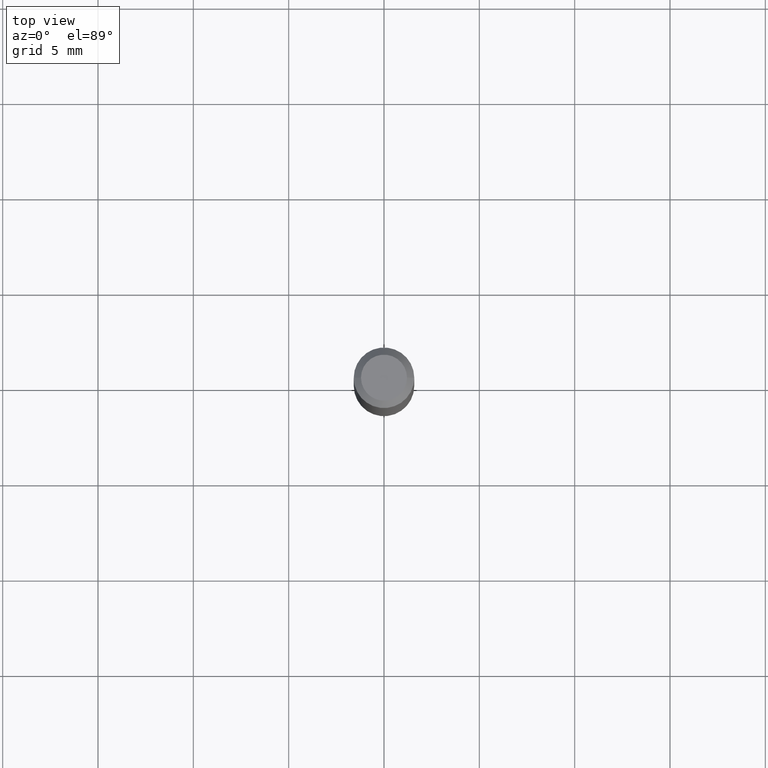
[diagram: clean part render]
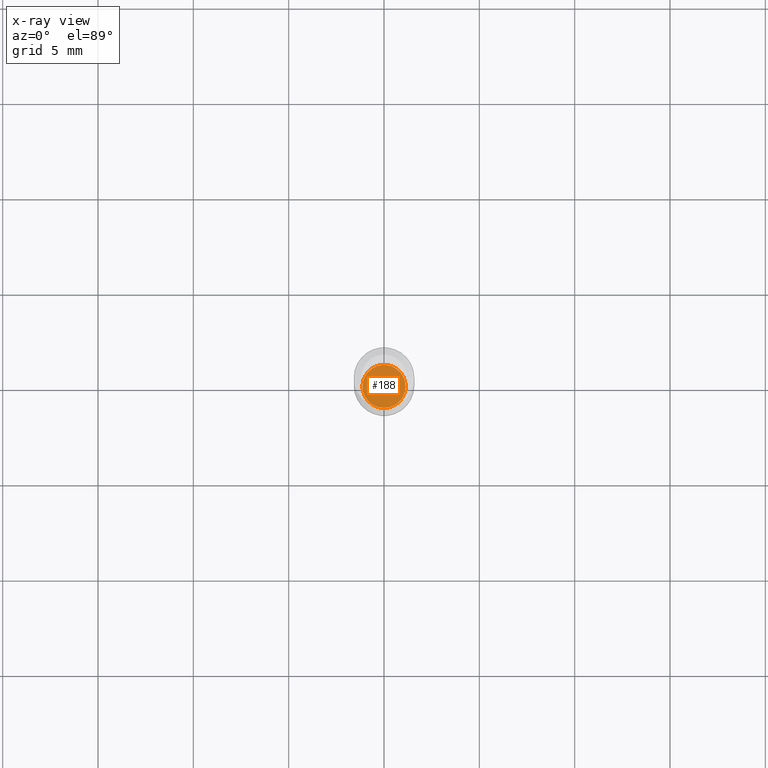
[diagram: x-ray — body ghosted, one internal face saturated and labeled with its STEP entity id]
A machine part, top view, then the same camera in x-ray: the body is ghosted and one INTERNAL B-rep face — a face not visible from any outside direction — is saturated and labeled: STEP entity #188.
In plain terms, the highlighted planar face has unit normal (-0, 0, 1).
Its self-contained STEP definition (entity closure, byte-faithful):
#3 = DIRECTION ( 'NONE',  ( 1.000000000000000000, -6.982962677686265922E-15, 4.876176775795935793E-29 ) ) ;
#11 = VERTEX_POINT ( 'NONE', #211 ) ;
#36 = CARTESIAN_POINT ( 'NONE',  ( 0.04449999999999999789, -3.976797244942342113E-15, -1.050000000000000044 ) ) ;
#40 = AXIS2_PLACEMENT_3D ( 'NONE', #114, #430, #424 ) ;
#114 = CARTESIAN_POINT ( 'NONE',  ( 2.567742246494393763E-29, -3.666055405785303434E-15, -1.050000000000000044 ) ) ;
#126 = ORIENTED_EDGE ( 'NONE', *, *, #212, .F. ) ;
#127 = AXIS2_PLACEMENT_3D ( 'NONE', #186, #295, #3 ) ;
#160 = EDGE_CURVE ( 'NONE', #198, #11, #166, .T. ) ;
#166 = CIRCLE ( 'NONE', #456, 0.04449999999999999789 ) ;
#185 = CARTESIAN_POINT ( 'NONE',  ( 2.567742246494393763E-29, -3.666055405785303434E-15, -1.050000000000000044 ) ) ;
#186 = CARTESIAN_POINT ( 'NONE',  ( 2.567742246494393763E-29, -3.666055405785303434E-15, -1.050000000000000044 ) ) ;
#188 = ADVANCED_FACE ( 'NONE', ( #465 ), #428, .F. ) ;
#198 = VERTEX_POINT ( 'NONE', #36 ) ;
#211 = CARTESIAN_POINT ( 'NONE',  ( -0.04449999999999999789, -3.347214661197947369E-15, -1.050000000000000044 ) ) ;
#212 = EDGE_CURVE ( 'NONE', #11, #198, #448, .T. ) ;
#254 = DIRECTION ( 'NONE',  ( 1.000000000000000000, -6.982962677686267499E-15, 0.000000000000000000 ) ) ;
#295 = DIRECTION ( 'NONE',  ( -2.438088387897960049E-29, 3.491481338843145188E-15, 1.000000000000000000 ) ) ;
#332 = ORIENTED_EDGE ( 'NONE', *, *, #160, .F. ) ;
#393 = DIRECTION ( 'NONE',  ( -2.445468806185136597E-29, 3.491481338843145583E-15, 1.000000000000000000 ) ) ;
#405 = EDGE_LOOP ( 'NONE', ( #332, #126 ) ) ;
#424 = DIRECTION ( 'NONE',  ( 1.000000000000000000, -6.982962677686267499E-15, 0.000000000000000000 ) ) ;
#428 = PLANE ( 'NONE',  #127 ) ;
#430 = DIRECTION ( 'NONE',  ( -2.445468806185136597E-29, 3.491481338843145583E-15, 1.000000000000000000 ) ) ;
#448 = CIRCLE ( 'NONE', #40, 0.04449999999999999789 ) ;
#456 = AXIS2_PLACEMENT_3D ( 'NONE', #185, #393, #254 ) ;
#465 = FACE_OUTER_BOUND ( 'NONE', #405, .T. ) ;